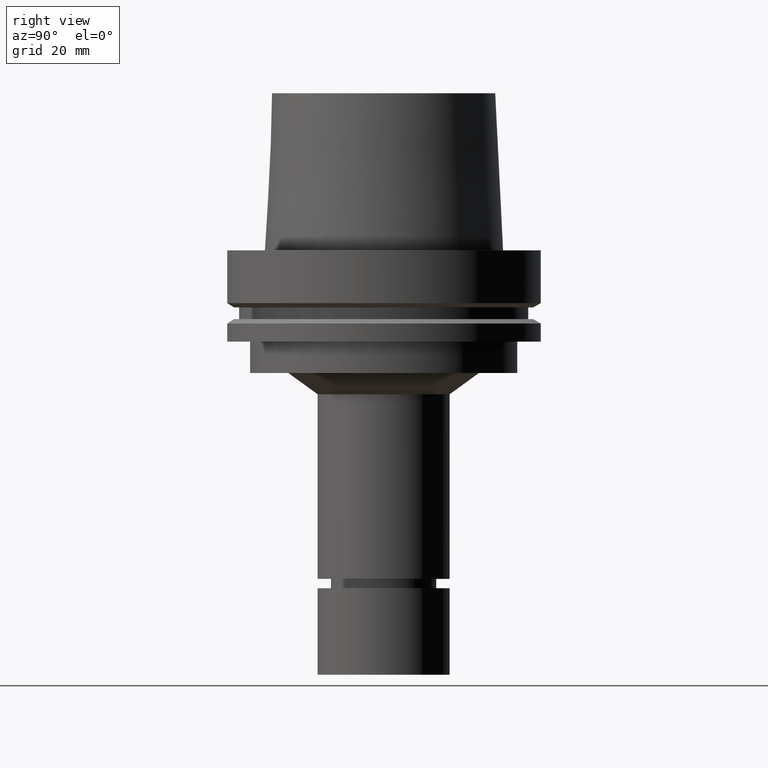
[diagram: clean part render]
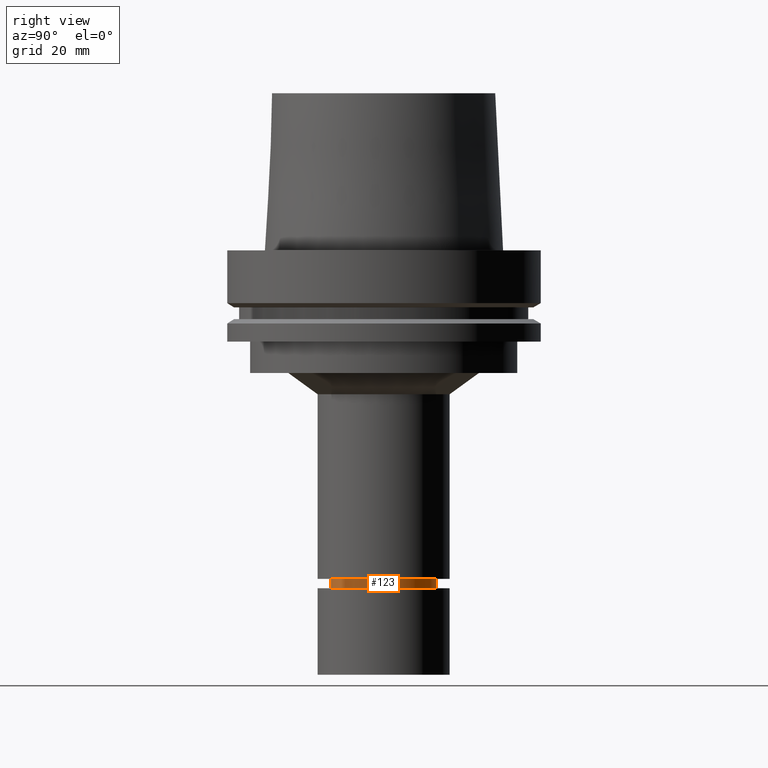
[diagram: same view with one face highlighted and labeled with its STEP entity id]
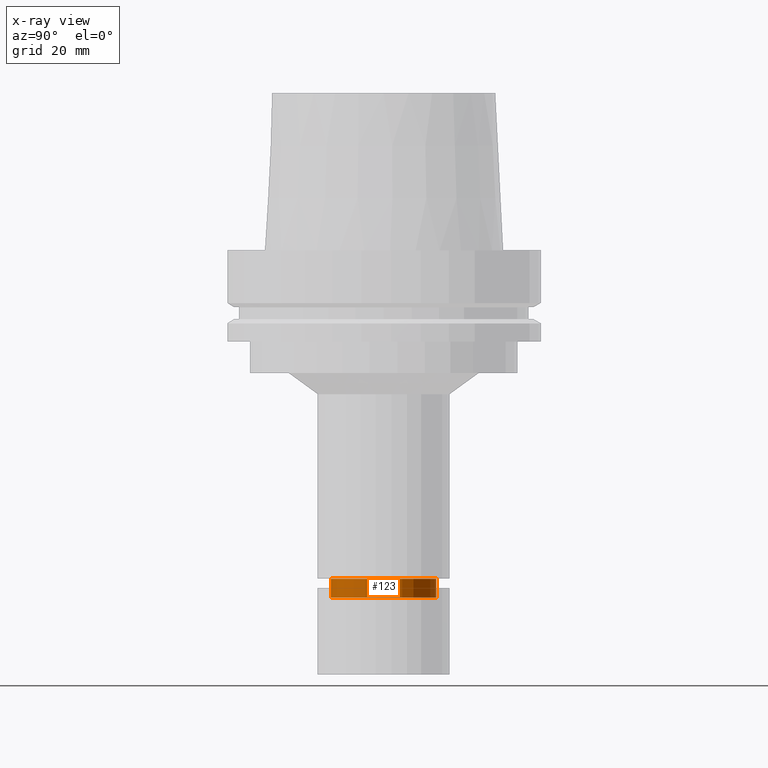
[diagram: x-ray of the same camera — body ghosted, the highlighted face saturated]
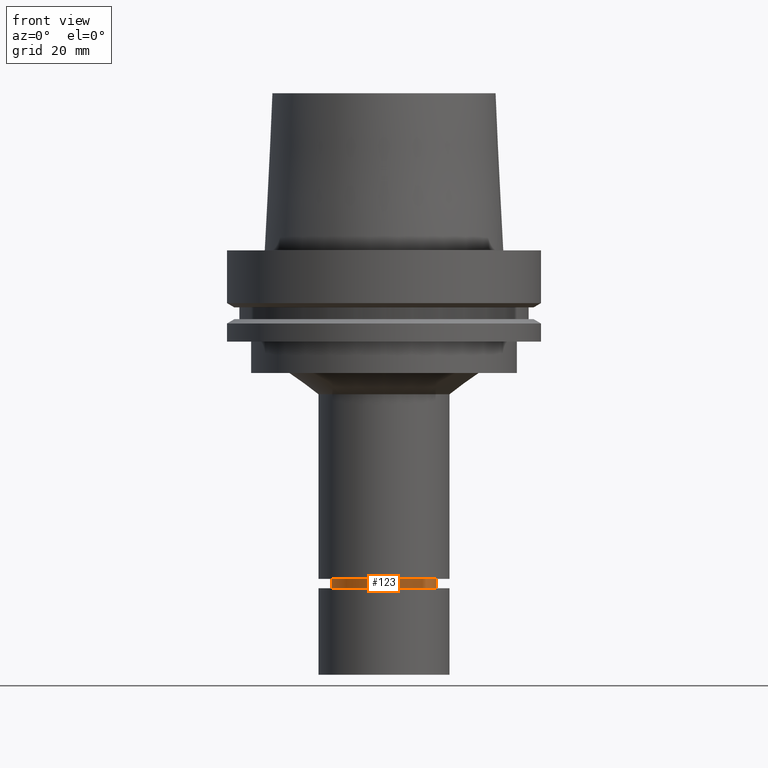
[diagram: same view with one face highlighted and labeled with its STEP entity id]
A machine part, right view. The second image highlights one B-rep face of the part: STEP entity #123.
The next image is the same camera in x-ray: the body ghosted, the highlighted face saturated — about 0% of this face is hidden behind the body in this view.
A second angle (front view) of the same face is appended — the face is thin or edge-on in the first view.
In plain terms, the highlighted cylindrical surface (bore or boss wall) has radius 16.75 mm, axis along (0, 0, -1).
Its self-contained STEP definition (entity closure, byte-faithful):
#81=EDGE_CURVE('Unnamed[1]',#222,#222,#223,.T.);
#123=ADVANCED_FACE('Unnamed[1]',(#289,#290),#291,.T.);
#150=EDGE_CURVE('Unnamed[1]',#330,#330,#331,.T.);
#222=VERTEX_POINT('',#422);
#223=CIRCLE('',#423,16.7500000000017);
#289=FACE_BOUND('',#505,.T.);
#290=FACE_BOUND('',#506,.T.);
#291=CYLINDRICAL_SURFACE('',#507,16.7499999999962);
#330=VERTEX_POINT('',#556);
#331=CIRCLE('',#557,16.7499999999907);
#422=CARTESIAN_POINT('',(6.7641727903392E-015,16.7500000000017,-110.467324865401));
#423=AXIS2_PLACEMENT_3D('',#655,#656,#657);
#505=EDGE_LOOP('',(#731));
#506=EDGE_LOOP('',(#732));
#507=AXIS2_PLACEMENT_3D('',#733,#734,#735);
#556=CARTESIAN_POINT('',(6.39877952554487E-015,16.7499999999907,-104.499999999999));
#557=AXIS2_PLACEMENT_3D('',#775,#776,#777);
#655=CARTESIAN_POINT('',(6.7641727903392E-015,1.35283455806784E-014,-110.467324865401));
#656=DIRECTION('',(6.12323399573677E-017,1.22464679914721E-016,-1.0));
#657=DIRECTION('',(-1.23259516440771E-032,1.0,1.22464679914721E-016));
#731=ORIENTED_EDGE('',*,*,#81,.F.);
#732=ORIENTED_EDGE('',*,*,#150,.T.);
#733=CARTESIAN_POINT('',(6.58147615794204E-015,1.31629523158841E-014,-107.4836624327));
#734=DIRECTION('',(6.12323399573676E-017,1.22464679914761E-016,-1.0));
#735=DIRECTION('',(-1.23259516440758E-032,1.0,1.22464679914761E-016));
#775=CARTESIAN_POINT('',(6.39877952554487E-015,1.27975590510897E-014,-104.499999999999));
#776=DIRECTION('',(6.12323399573677E-017,1.22464679914705E-016,-1.0));
#777=DIRECTION('',(-1.23259516440798E-032,1.0,1.22464679914705E-016));